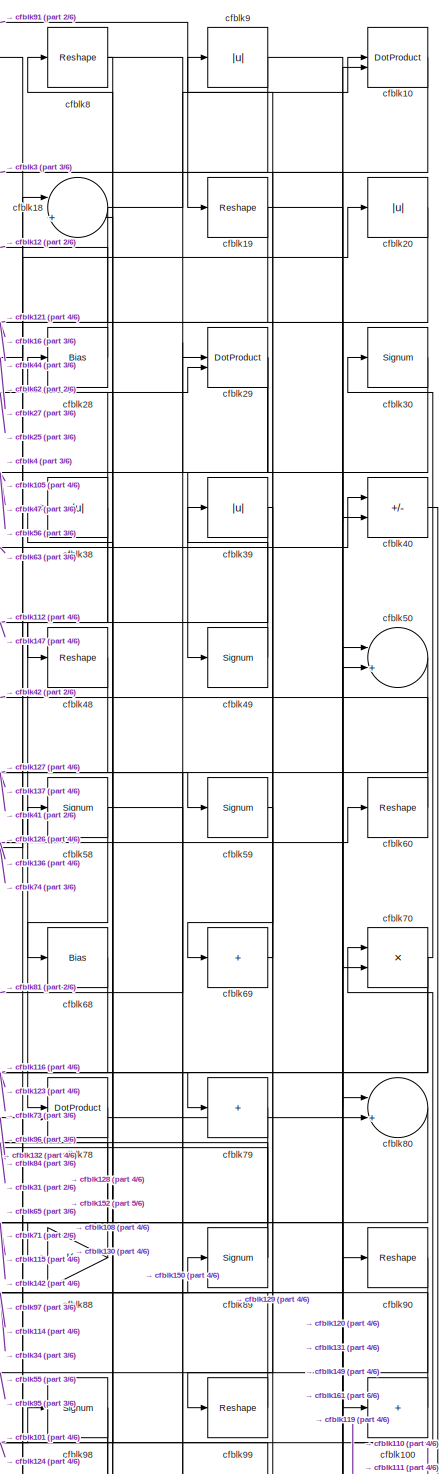
[diagram: root canvas - part 1/6, top right region]
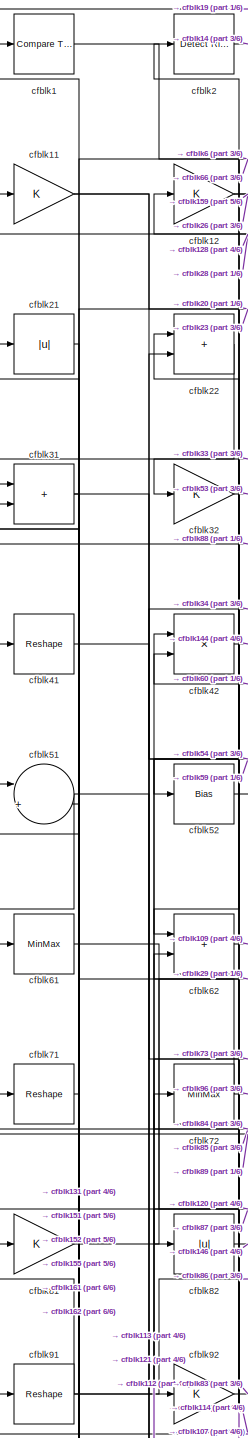
[diagram: root canvas - part 2/6, top left region]
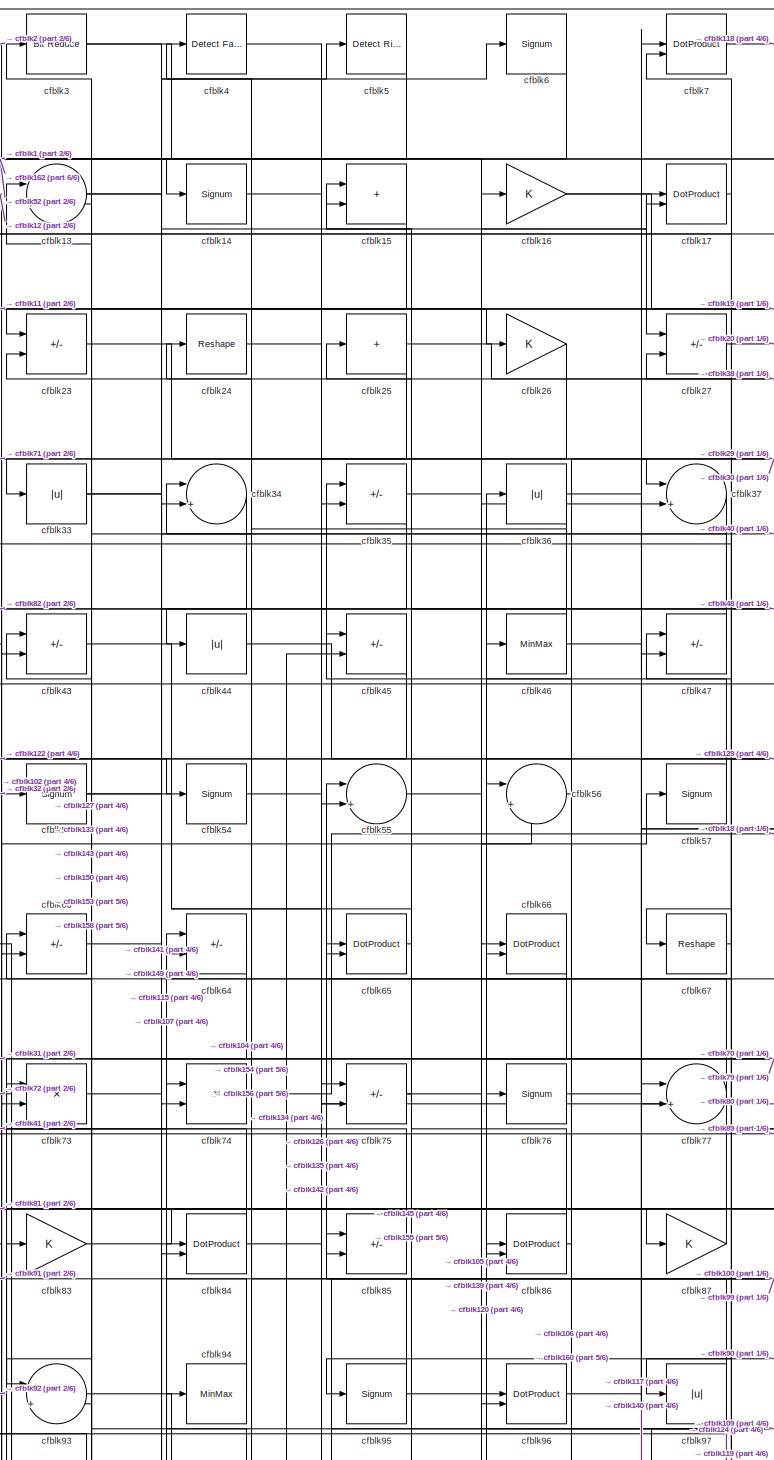
[diagram: root canvas - part 3/6, top center region]
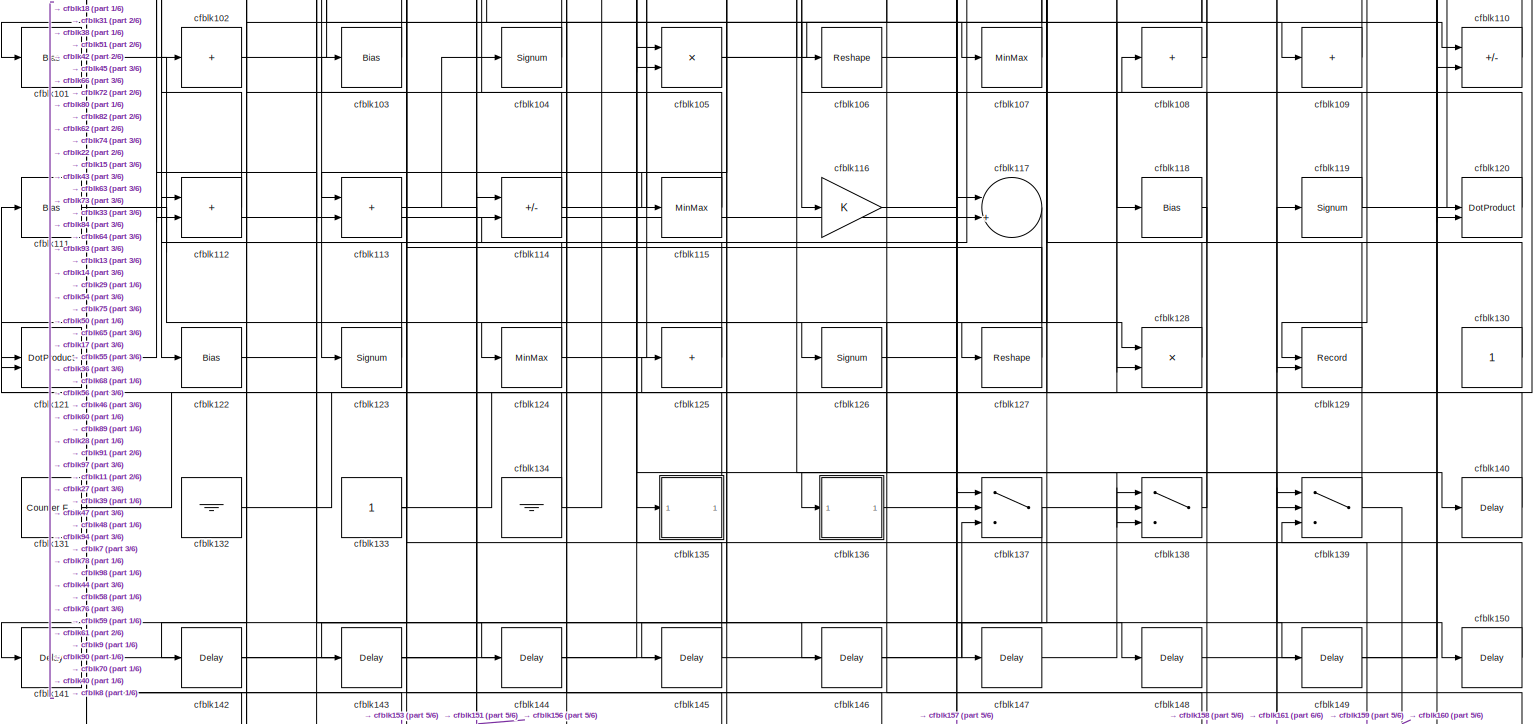
[diagram: root canvas - part 4/6, full width, bottom band]
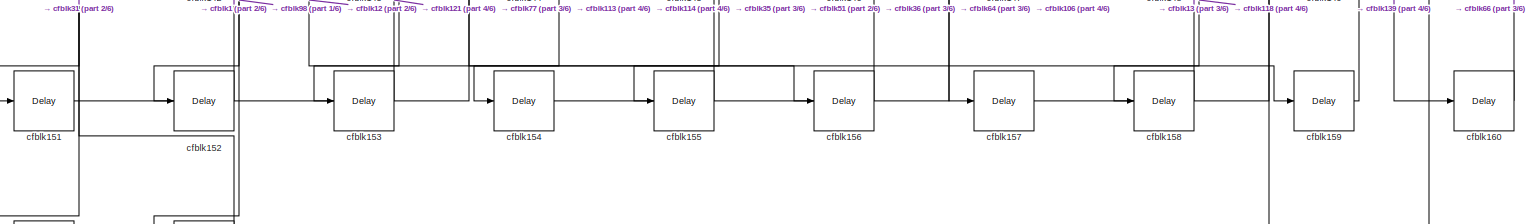
[diagram: root canvas - part 5/6, full width, bottom band]
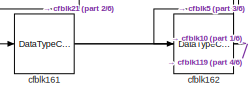
[diagram: root canvas - part 6/6, bottom left region]
MODEL slx_2c17a058ddc8
KIND model
CONFIG AbsTol = auto
CONFIG EnableMultiTasking = off
CONFIG FixedStep = auto
CONFIG MaxStep = auto
CONFIG MinStep = auto
CONFIG RelTol = 1e-3
CONFIG SampleTimeConstraint = Unconstrained
CONFIG SolverName = VariableStepAuto
CONFIG StartTime = 0.0
CONFIG StopTime = 10.0
BLOCK [Reference] cfblk1  REF=hdlsllib/Logic and Bit
Operations/Compare
To Constant
  SourceBlock = hdlsllib/Logic and Bit\nOperations/Compare\nTo Constant
  SourceType = Compare To Constant
BLOCK [DotProduct] cfblk10
  OutDataTypeStr = Inherit: Inherit via internal rule
BLOCK [Sum] cfblk100
  IconShape = rectangular
  Inputs = +
BLOCK [Bias] cfblk101
  Bias = 0.0
  SaturateOnIntegerOverflow = off
BLOCK [Sum] cfblk102
  IconShape = rectangular
  Inputs = +
BLOCK [Bias] cfblk103
  Bias = 0.0
  SaturateOnIntegerOverflow = off
BLOCK [Signum] cfblk104
BLOCK [Product] cfblk105
  Inputs = */
  RndMeth = Zero
  SaturateOnIntegerOverflow = on
BLOCK [Reshape] cfblk106
BLOCK [MinMax] cfblk107
BLOCK [Sum] cfblk108
  IconShape = rectangular
  Inputs = +
BLOCK [Sum] cfblk109
  IconShape = rectangular
  Inputs = +
BLOCK [Gain] cfblk11
BLOCK [Sum] cfblk110
  IconShape = rectangular
  Inputs = +-
BLOCK [Bias] cfblk111
  Bias = 0.0
  SaturateOnIntegerOverflow = off
BLOCK [Sum] cfblk112
  IconShape = rectangular
BLOCK [Sum] cfblk113
  IconShape = rectangular
BLOCK [Sum] cfblk114
  IconShape = rectangular
  Inputs = +-
BLOCK [MinMax] cfblk115
BLOCK [Gain] cfblk116
BLOCK [Sum] cfblk117
  Inputs = |++
BLOCK [Bias] cfblk118
  Bias = 0.0
  SaturateOnIntegerOverflow = off
BLOCK [Signum] cfblk119
BLOCK [Gain] cfblk12
BLOCK [DotProduct] cfblk120
  OutDataTypeStr = Inherit: Inherit via internal rule
BLOCK [DotProduct] cfblk121
  OutDataTypeStr = Inherit: Inherit via internal rule
BLOCK [Bias] cfblk122
  Bias = 0.0
  SaturateOnIntegerOverflow = off
BLOCK [Signum] cfblk123
BLOCK [MinMax] cfblk124
BLOCK [Sum] cfblk125
  IconShape = rectangular
  Inputs = +
BLOCK [Signum] cfblk126
BLOCK [Reshape] cfblk127
BLOCK [Product] cfblk128
  Inputs = */
  RndMeth = Zero
  SaturateOnIntegerOverflow = on
BLOCK [Record] cfblk129
  CompatibilityTag = XY
  FileSettingsInternal = {"entries":[{"content":{"excelSettings":{"content":{},"type":"Streamout.ExcelSettings"}},"type":"Streamout.FileSettingStorage","uuid":""}],"packageUris":["http:\/\/schema.mathworks.com\/mf0\/streamout_blocks\/R2020a"],"version":"1.0"}
  Layout = [1 1]
  SignalsInternal = {"entries":[{"content":{"signals":[{"content":{"blockPath":[],"dimensions":[1],"domain":"","lineColor":"#a2142f","plots":[1],"port":1,"signalID":1546,"signalName":"XY Graph:1"},"type":"RecordBlkView.Signal","uuid":""},{"content":{"blockPath":[],"dimensions":[1],"domain":"","lineColor":"#139fff","plots":[1],"port":2,"signalID":1549,"signalName":"XY Graph:2"},"type":"RecordBlkView.Signal","uuid":""}...<+146ch>
  VisualizationBindings = {"xyplotplugin":{"info":[{"series":[{"bindingParametersList":[{"parameter":"X-Axis","signalID":1546,"signalName":"XY Graph:1"},{"parameter":"Y-Axis","signalID":1549,"signalName":"XY Graph:2"}],"seriesID":63561}],"subplotID":1}]}}
  st = -1
BLOCK [Sum] cfblk13
  Inputs = |++
BLOCK [Constant] cfblk130
  SampleTime = -1
BLOCK [Reference] cfblk131  REF=hdlsllib/Sources/Counter
Free-Running
  SourceBlock = hdlsllib/Sources/Counter\nFree-Running
  SourceType = Counter Free-Running
BLOCK [Ground] cfblk132
BLOCK [Constant] cfblk133
  SampleTime = -1
BLOCK [Ground] cfblk134
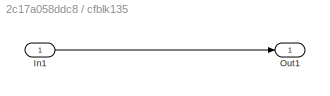
BLOCK [SubSystem] cfblk135
  LibrarySourceBlock = hdlsllib/Ports &\nSubsystems/Subsystem
BLOCK [Inport] cfblk135/In1
BLOCK [Outport] cfblk135/Out1
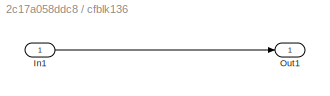
BLOCK [SubSystem] cfblk136
  LibrarySourceBlock = hdlsllib/Ports &\nSubsystems/Subsystem
BLOCK [Inport] cfblk136/In1
BLOCK [Outport] cfblk136/Out1
BLOCK [Switch] cfblk137
  InputSameDT = off
  SaturateOnIntegerOverflow = off
BLOCK [Switch] cfblk138
  InputSameDT = off
  SaturateOnIntegerOverflow = off
BLOCK [Switch] cfblk139
  InputSameDT = off
  SaturateOnIntegerOverflow = off
BLOCK [Signum] cfblk14
BLOCK [Delay] cfblk140
  InputPortMap = u0
  SampleTime = 1
BLOCK [Delay] cfblk141
  InputPortMap = u0
  SampleTime = 1
BLOCK [Delay] cfblk142
  InputPortMap = u0
  SampleTime = 1
BLOCK [Delay] cfblk143
  InputPortMap = u0
  SampleTime = 1
BLOCK [Delay] cfblk144
  InputPortMap = u0
  SampleTime = 1
BLOCK [Delay] cfblk145
  InputPortMap = u0
  SampleTime = 1
BLOCK [Delay] cfblk146
  InputPortMap = u0
  SampleTime = 1
BLOCK [Delay] cfblk147
  InputPortMap = u0
  SampleTime = 1
BLOCK [Delay] cfblk148
  InputPortMap = u0
  SampleTime = 1
BLOCK [Delay] cfblk149
  InputPortMap = u0
  SampleTime = 1
BLOCK [Sum] cfblk15
  IconShape = rectangular
BLOCK [Delay] cfblk150
  InputPortMap = u0
  SampleTime = 1
BLOCK [Delay] cfblk151
  InputPortMap = u0
  SampleTime = 1
BLOCK [Delay] cfblk152
  InputPortMap = u0
  SampleTime = 1
BLOCK [Delay] cfblk153
  InputPortMap = u0
  SampleTime = 1
BLOCK [Delay] cfblk154
  InputPortMap = u0
  SampleTime = 1
BLOCK [Delay] cfblk155
  InputPortMap = u0
  SampleTime = 1
BLOCK [Delay] cfblk156
  InputPortMap = u0
  SampleTime = 1
BLOCK [Delay] cfblk157
  InputPortMap = u0
  SampleTime = 1
BLOCK [Delay] cfblk158
  InputPortMap = u0
  SampleTime = 1
BLOCK [Delay] cfblk159
  InputPortMap = u0
  SampleTime = 1
BLOCK [Gain] cfblk16
BLOCK [Delay] cfblk160
  InputPortMap = u0
  SampleTime = 1
BLOCK [DataTypeConversion] cfblk161
  RndMeth = Floor
  SaturateOnIntegerOverflow = off
BLOCK [DataTypeConversion] cfblk162
  OutDataTypeStr = uint8
  RndMeth = Floor
  SaturateOnIntegerOverflow = off
BLOCK [DotProduct] cfblk17
  OutDataTypeStr = Inherit: Inherit via internal rule
BLOCK [Sum] cfblk18
  Inputs = |++
BLOCK [Reshape] cfblk19
BLOCK [Reference] cfblk2  REF=hdlsllib/Logic and Bit
Operations/Detect Rise
Positive
  SourceBlock = hdlsllib/Logic and Bit\nOperations/Detect Rise\nPositive
  SourceType = Detect Rise Positive
BLOCK [Abs] cfblk20
  SaturateOnIntegerOverflow = off
BLOCK [Abs] cfblk21
  SaturateOnIntegerOverflow = off
BLOCK [Sum] cfblk22
  IconShape = rectangular
BLOCK [Sum] cfblk23
  IconShape = rectangular
  Inputs = +-
BLOCK [Reshape] cfblk24
BLOCK [Sum] cfblk25
  IconShape = rectangular
  Inputs = +
BLOCK [Gain] cfblk26
BLOCK [Sum] cfblk27
  IconShape = rectangular
  Inputs = +-
BLOCK [Bias] cfblk28
  Bias = 0.0
  SaturateOnIntegerOverflow = off
BLOCK [DotProduct] cfblk29
  OutDataTypeStr = Inherit: Inherit via internal rule
BLOCK [Reference] cfblk3  REF=hdlsllib/Logic and Bit
Operations/Bit Reduce
  SourceBlock = hdlsllib/Logic and Bit\nOperations/Bit Reduce
  SourceType = Bit Reduce
BLOCK [Signum] cfblk30
BLOCK [Sum] cfblk31
  IconShape = rectangular
BLOCK [Gain] cfblk32
BLOCK [Abs] cfblk33
  SaturateOnIntegerOverflow = off
BLOCK [Sum] cfblk34
  Inputs = |++
BLOCK [Sum] cfblk35
  IconShape = rectangular
  Inputs = +-
BLOCK [Abs] cfblk36
  SaturateOnIntegerOverflow = off
BLOCK [Sum] cfblk37
  Inputs = |++
BLOCK [Abs] cfblk38
  SaturateOnIntegerOverflow = off
BLOCK [Abs] cfblk39
  SaturateOnIntegerOverflow = off
BLOCK [Reference] cfblk4  REF=hdlsllib/Logic and Bit
Operations/Detect Fall
Negative
  SourceBlock = hdlsllib/Logic and Bit\nOperations/Detect Fall\nNegative
  SourceType = Detect Fall Negative
BLOCK [Sum] cfblk40
  IconShape = rectangular
  Inputs = +-
BLOCK [Reshape] cfblk41
BLOCK [Product] cfblk42
  Inputs = */
  RndMeth = Zero
  SaturateOnIntegerOverflow = on
BLOCK [Sum] cfblk43
  IconShape = rectangular
  Inputs = +-
BLOCK [Abs] cfblk44
  SaturateOnIntegerOverflow = off
BLOCK [Sum] cfblk45
  IconShape = rectangular
  Inputs = +-
BLOCK [MinMax] cfblk46
BLOCK [Sum] cfblk47
  IconShape = rectangular
  Inputs = +-
BLOCK [Reshape] cfblk48
BLOCK [Signum] cfblk49
BLOCK [Reference] cfblk5  REF=hdlsllib/Logic and Bit
Operations/Detect Rise
Nonnegative
  SourceBlock = hdlsllib/Logic and Bit\nOperations/Detect Rise\nNonnegative
  SourceType = Detect Rise Nonnegative
BLOCK [Sum] cfblk50
  Inputs = |++
BLOCK [Sum] cfblk51
  Inputs = |++
BLOCK [Bias] cfblk52
  Bias = 0.0
  SaturateOnIntegerOverflow = off
BLOCK [Signum] cfblk53
BLOCK [Signum] cfblk54
BLOCK [Sum] cfblk55
  Inputs = |++
BLOCK [Sum] cfblk56
  Inputs = |++
BLOCK [Signum] cfblk57
BLOCK [Signum] cfblk58
BLOCK [Signum] cfblk59
BLOCK [Signum] cfblk6
BLOCK [Reshape] cfblk60
BLOCK [MinMax] cfblk61
BLOCK [Sum] cfblk62
  IconShape = rectangular
BLOCK [Sum] cfblk63
  IconShape = rectangular
  Inputs = +-
BLOCK [Sum] cfblk64
  IconShape = rectangular
  Inputs = +-
BLOCK [DotProduct] cfblk65
  OutDataTypeStr = Inherit: Inherit via internal rule
BLOCK [DotProduct] cfblk66
  OutDataTypeStr = Inherit: Inherit via internal rule
BLOCK [Reshape] cfblk67
BLOCK [Bias] cfblk68
  Bias = 0.0
  SaturateOnIntegerOverflow = off
BLOCK [Sum] cfblk69
  IconShape = rectangular
  Inputs = +
BLOCK [DotProduct] cfblk7
  OutDataTypeStr = Inherit: Inherit via internal rule
BLOCK [Product] cfblk70
  Inputs = */
  RndMeth = Zero
  SaturateOnIntegerOverflow = on
BLOCK [Reshape] cfblk71
BLOCK [MinMax] cfblk72
BLOCK [Product] cfblk73
  Inputs = */
  RndMeth = Zero
  SaturateOnIntegerOverflow = on
BLOCK [Product] cfblk74
  Inputs = */
  RndMeth = Zero
  SaturateOnIntegerOverflow = on
BLOCK [Sum] cfblk75
  IconShape = rectangular
  Inputs = +-
BLOCK [Signum] cfblk76
BLOCK [Sum] cfblk77
  Inputs = |++
BLOCK [DotProduct] cfblk78
  OutDataTypeStr = Inherit: Inherit via internal rule
BLOCK [Sum] cfblk79
  IconShape = rectangular
  Inputs = +
BLOCK [Reshape] cfblk8
BLOCK [Sum] cfblk80
  Inputs = |++
BLOCK [Gain] cfblk81
BLOCK [Abs] cfblk82
  SaturateOnIntegerOverflow = off
BLOCK [Gain] cfblk83
BLOCK [DotProduct] cfblk84
  OutDataTypeStr = Inherit: Inherit via internal rule
BLOCK [Sum] cfblk85
  IconShape = rectangular
  Inputs = +-
BLOCK [DotProduct] cfblk86
  OutDataTypeStr = Inherit: Inherit via internal rule
BLOCK [Gain] cfblk87
BLOCK [Gain] cfblk88
BLOCK [Signum] cfblk89
BLOCK [Abs] cfblk9
  SaturateOnIntegerOverflow = off
BLOCK [Reshape] cfblk90
BLOCK [Reshape] cfblk91
BLOCK [Gain] cfblk92
BLOCK [Sum] cfblk93
  Inputs = |++
BLOCK [MinMax] cfblk94
BLOCK [Signum] cfblk95
BLOCK [DotProduct] cfblk96
  OutDataTypeStr = Inherit: Inherit via internal rule
BLOCK [Abs] cfblk97
  SaturateOnIntegerOverflow = off
BLOCK [Signum] cfblk98
BLOCK [Reshape] cfblk99
LINE cfblk100:1 -> cfblk55:1
LINE cfblk101:1 -> cfblk28:1
LINE cfblk102:1 -> cfblk74:1
LINE cfblk103:1 -> cfblk22:1
LINE cfblk104:1 -> cfblk13:2
NET cfblk105:1 -> cfblk110:1, cfblk17:1
LINE cfblk106:1 -> cfblk157:1
LINE cfblk107:1 -> cfblk91:1
LINE cfblk108:1 -> cfblk38:1
LINE cfblk109:1 -> cfblk76:1
LINE cfblk10:1 -> cfblk69:1
LINE cfblk110:1 -> cfblk8:1
NET cfblk111:1 -> cfblk117:2, cfblk128:1
LINE cfblk112:1 -> cfblk42:1
NET cfblk113:1 -> cfblk104:1, cfblk156:1
NET cfblk114:1 -> cfblk138:3, cfblk50:1, cfblk62:2
NET cfblk115:1 -> cfblk113:1, cfblk64:1
NET cfblk116:1 -> cfblk148:1, cfblk89:1
LINE cfblk117:1 -> cfblk136:1
LINE cfblk118:1 -> cfblk158:1
NET cfblk119:1 -> cfblk47:1, cfblk70:1
NET cfblk11:1 -> cfblk23:1, cfblk54:1
LINE cfblk120:1 -> cfblk36:1
LINE cfblk121:1 -> cfblk22:2
LINE cfblk122:1 -> cfblk56:2
LINE cfblk123:1 -> cfblk112:1
NET cfblk124:1 -> cfblk72:1, cfblk98:1
LINE cfblk125:1 -> cfblk114:2
LINE cfblk126:1 -> cfblk58:1
LINE cfblk127:1 -> cfblk63:1
LINE cfblk128:1 -> cfblk11:1
NET cfblk12:1 -> cfblk159:1, cfblk26:1
LINE cfblk130:1 -> cfblk18:2
NET cfblk131:1 -> cfblk31:2, cfblk90:1
LINE cfblk132:1 -> cfblk78:2
NET cfblk133:1 -> cfblk103:1, cfblk105:1, cfblk43:1
NET cfblk134:1 -> cfblk45:2, cfblk73:1
LINE cfblk135/In1:1 -> cfblk135/Out1:1
LINE cfblk135:1 -> cfblk125:1
LINE cfblk136/In1:1 -> cfblk136/Out1:1
LINE cfblk136:1 -> cfblk60:1
NET cfblk137:1 -> cfblk138:2, cfblk141:1
LINE cfblk138:1 -> cfblk108:1
NET cfblk139:1 -> cfblk160:1, cfblk94:1
NET cfblk13:1 -> cfblk17:2, cfblk5:1
LINE cfblk140:1 -> cfblk27:2
LINE cfblk141:1 -> cfblk84:2
LINE cfblk142:1 -> cfblk55:2
LINE cfblk143:1 -> cfblk74:2
LINE cfblk144:1 -> cfblk137:3
LINE cfblk145:1 -> cfblk75:1
LINE cfblk146:1 -> cfblk137:1
LINE cfblk147:1 -> cfblk138:1
LINE cfblk148:1 -> cfblk110:2
LINE cfblk149:1 -> cfblk50:2
LINE cfblk14:1 -> cfblk135:1
LINE cfblk150:1 -> cfblk93:2
LINE cfblk151:1 -> cfblk114:1
LINE cfblk152:1 -> cfblk1:1
LINE cfblk153:1 -> cfblk121:2
LINE cfblk154:1 -> cfblk77:2
LINE cfblk155:1 -> cfblk51:2
LINE cfblk156:1 -> cfblk64:2
LINE cfblk157:1 -> cfblk139:1
LINE cfblk158:1 -> cfblk13:1
LINE cfblk159:1 -> cfblk139:3
LINE cfblk15:1 -> cfblk143:1
LINE cfblk160:1 -> cfblk66:2
NET cfblk161:1 -> cfblk10:2, cfblk119:1
LINE cfblk162:1 -> cfblk21:1
NET cfblk16:1 -> cfblk100:1, cfblk27:1
LINE cfblk17:1 -> cfblk67:1
NET cfblk18:1 -> cfblk10:1, cfblk121:1
NET cfblk19:1 -> cfblk44:1, cfblk80:1
LINE cfblk1:1 -> cfblk66:1
LINE cfblk20:1 -> cfblk62:1
LINE cfblk21:1 -> cfblk161:1
LINE cfblk22:1 -> cfblk32:1
LINE cfblk23:1 -> cfblk37:1
LINE cfblk24:1 -> cfblk35:2
NET cfblk25:1 -> cfblk29:2, cfblk43:2
LINE cfblk26:1 -> cfblk63:2
LINE cfblk27:1 -> cfblk20:1
LINE cfblk28:1 -> cfblk12:1
NET cfblk29:1 -> cfblk105:2, cfblk47:2, cfblk49:1
LINE cfblk2:1 -> cfblk14:1
LINE cfblk30:1 -> cfblk56:1
NET cfblk31:1 -> cfblk151:1, cfblk73:2
LINE cfblk32:1 -> cfblk53:1
NET cfblk33:1 -> cfblk149:1, cfblk34:2
LINE cfblk34:1 -> cfblk82:1
NET cfblk35:1 -> cfblk154:1, cfblk37:2
NET cfblk36:1 -> cfblk155:1, cfblk77:1
LINE cfblk37:1 -> cfblk65:1
NET cfblk38:1 -> cfblk112:2, cfblk4:1, cfblk78:1
NET cfblk39:1 -> cfblk147:1, cfblk99:1
NET cfblk3:1 -> cfblk45:1, cfblk70:2
LINE cfblk40:1 -> cfblk111:1
LINE cfblk41:1 -> cfblk59:1
LINE cfblk42:1 -> cfblk144:1
LINE cfblk43:1 -> cfblk85:1
LINE cfblk44:1 -> cfblk129:2
LINE cfblk45:1 -> cfblk122:1
NET cfblk46:1 -> cfblk117:1, cfblk23:2
LINE cfblk47:1 -> cfblk3:1
LINE cfblk48:1 -> cfblk127:1
LINE cfblk49:1 -> cfblk39:1
LINE cfblk4:1 -> cfblk48:1
LINE cfblk50:1 -> cfblk137:2
NET cfblk51:1 -> cfblk113:2, cfblk61:1
LINE cfblk52:1 -> cfblk86:1
NET cfblk53:1 -> cfblk6:1, cfblk75:2
LINE cfblk54:1 -> cfblk126:1
LINE cfblk55:1 -> cfblk139:2
LINE cfblk56:1 -> cfblk106:1
LINE cfblk57:1 -> cfblk35:1
NET cfblk58:1 -> cfblk150:1, cfblk68:1
LINE cfblk59:1 -> cfblk129:1
LINE cfblk5:1 -> cfblk162:1
LINE cfblk60:1 -> cfblk42:2
LINE cfblk61:1 -> cfblk120:2
LINE cfblk62:1 -> cfblk109:1
LINE cfblk63:1 -> cfblk40:1
LINE cfblk64:1 -> cfblk93:1
LINE cfblk65:1 -> cfblk145:1
LINE cfblk66:1 -> cfblk102:1
LINE cfblk67:1 -> cfblk7:2
LINE cfblk68:1 -> cfblk116:1
LINE cfblk69:1 -> cfblk9:1
LINE cfblk6:1 -> cfblk52:1
NET cfblk70:1 -> cfblk123:1, cfblk30:1, cfblk96:2
LINE cfblk71:1 -> cfblk33:1
NET cfblk72:1 -> cfblk51:1, cfblk96:1
LINE cfblk73:1 -> cfblk79:1
LINE cfblk74:1 -> cfblk18:1
NET cfblk75:1 -> cfblk16:1, cfblk25:1
LINE cfblk76:1 -> cfblk140:1
NET cfblk77:1 -> cfblk153:1, cfblk24:1
LINE cfblk78:1 -> cfblk115:1
LINE cfblk79:1 -> cfblk97:1
LINE cfblk7:1 -> cfblk118:1
LINE cfblk80:1 -> cfblk142:1
LINE cfblk81:1 -> cfblk29:1
LINE cfblk82:1 -> cfblk146:1
LINE cfblk83:1 -> cfblk87:1
NET cfblk84:1 -> cfblk2:1, cfblk80:2
LINE cfblk85:1 -> cfblk41:1
NET cfblk86:1 -> cfblk15:2, cfblk46:1
LINE cfblk87:1 -> cfblk81:1
LINE cfblk88:1 -> cfblk31:1
NET cfblk89:1 -> cfblk65:2, cfblk71:1
NET cfblk8:1 -> cfblk40:2, cfblk88:1
LINE cfblk90:1 -> cfblk95:1
NET cfblk91:1 -> cfblk19:1, cfblk86:2, cfblk92:1
LINE cfblk92:1 -> cfblk83:1
LINE cfblk93:1 -> cfblk107:1
LINE cfblk94:1 -> cfblk84:1
NET cfblk95:1 -> cfblk57:1, cfblk85:2
LINE cfblk96:1 -> cfblk7:1
NET cfblk97:1 -> cfblk124:1, cfblk15:1
NET cfblk98:1 -> cfblk128:2, cfblk152:1
LINE cfblk99:1 -> cfblk34:1
NET cfblk9:1 -> cfblk101:1, cfblk120:1
note: NET lines group one-source signal fan-out (src -> all destinations, sorted); 1:1 wires keep LINE
